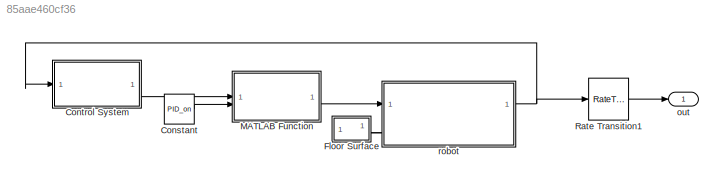
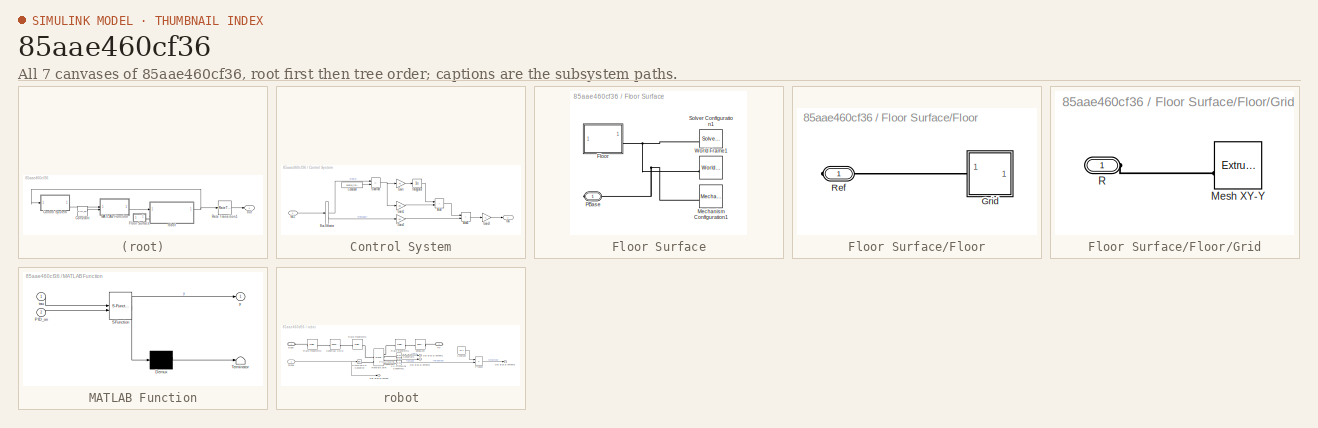
[diagram: thumbnail index - all 7 canvases of the model, root first then tree order]
MODEL slx_85aae460cf36
KIND model
CONFIG AbsTol = auto
CONFIG EnableMultiTasking = off
CONFIG FixedStep = auto
CONFIG MaxStep = auto
CONFIG MinStep = auto
CONFIG RelTol = 1e-3
CONFIG SampleTimeConstraint = Unconstrained
CONFIG SolverName = VariableStepAuto
CONFIG StartTime = 0.0
CONFIG StopTime = 10.0
BLOCK [Constant] Constant
  Value = PID_on
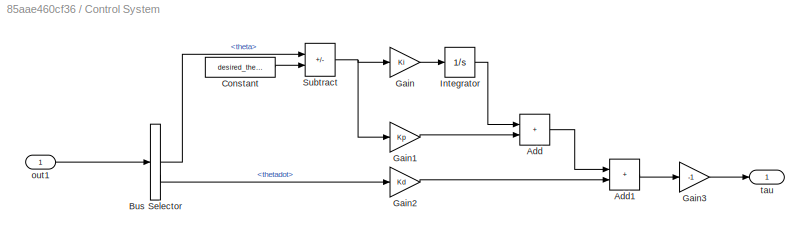
BLOCK [SubSystem] Control System
BLOCK [Sum] Control System/Add
  IconShape = rectangular
BLOCK [Sum] Control System/Add1
  IconShape = rectangular
BLOCK [BusSelector] Control System/Bus Selector
  OutputSignals = theta,thetadot
BLOCK [Constant] Control System/Constant
  Value = desired_theta
BLOCK [Gain] Control System/Gain
  Gain = Ki
BLOCK [Gain] Control System/Gain1
  Gain = Kp
BLOCK [Gain] Control System/Gain2
  Gain = Kd
BLOCK [Gain] Control System/Gain3
  Gain = -1
BLOCK [Integrator] Control System/Integrator
BLOCK [Sum] Control System/Subtract
  IconShape = rectangular
  Inputs = +-
BLOCK [Inport] Control System/out1
BLOCK [Outport] Control System/tau
BLOCK [SubSystem] Floor Surface
BLOCK [SubSystem] Floor Surface/Floor
BLOCK [SubSystem] Floor Surface/Floor/Grid
BLOCK [Reference] Floor Surface/Floor/Grid/Mesh XY-Y  REF=sm_lib/Body Elements/Extruded Solid
  SourceBlock = sm_lib/Body Elements/Extruded Solid
  SourceType = Extruded Solid
BLOCK [PMIOPort] Floor Surface/Floor/Grid/R
  Side = Left
BLOCK [PMIOPort] Floor Surface/Floor/Ref
  NameLocation = top
  Side = Right
BLOCK [Reference] Floor Surface/Mechanism Configuration1  REF=sm_lib/Utilities/Mechanism
Configuration
  NameLocation = top
  SourceBlock = sm_lib/Utilities/Mechanism\nConfiguration
  SourceType = Mechanism\nConfiguration
BLOCK [PMIOPort] Floor Surface/PBase
  Side = Right
BLOCK [Reference] Floor Surface/Solver Configuration1  REF=nesl_utility/Solver
Configuration
  NameLocation = top
  SourceBlock = nesl_utility/Solver\nConfiguration
  SourceType = Solver\nConfiguration
BLOCK [Reference] Floor Surface/World Frame1  REF=sm_lib/Frames and
Transforms/World Frame
  NameLocation = top
  SourceBlock = sm_lib/Frames and\nTransforms/World Frame
  SourceType = World Frame
BLOCK [SubSystem] MATLAB Function
  ErrorFcn = Stateflow.Translate.translate
  PermitHierarchicalResolution = ExplicitOnly
  SFBlockType = MATLAB Function
  TreatAsAtomicUnit = on
BLOCK [Demux] MATLAB Function/ Demux 
  Outputs = 1
BLOCK [S-Function] MATLAB Function/ SFunction 
  EnableBusSupport = on
  FunctionName = sf_sfun
  PortCounts = [2 2]
  SFcnIsStateOwnerBlock = off
  SFunctionDeploymentMode = off
  Tag = Stateflow S-Function 2
BLOCK [Terminator] MATLAB Function/ Terminator 
BLOCK [Inport] MATLAB Function/PID_on
  Port = 2
BLOCK [Inport] MATLAB Function/tau
BLOCK [Outport] MATLAB Function/y
BLOCK [RateTransition] Rate Transition1
  OutPortSampleTime = samplingrate
BLOCK [Outport] out
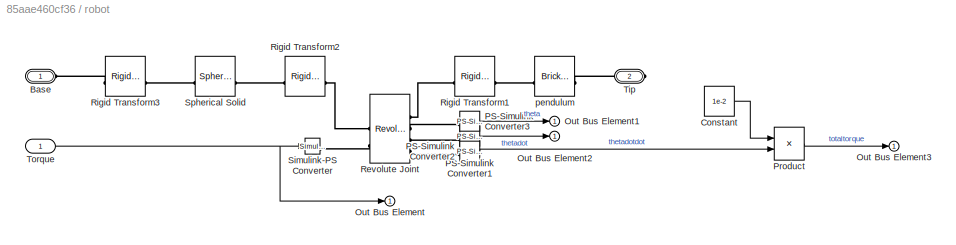
BLOCK [SubSystem] robot
BLOCK [PMIOPort] robot/Base
  Side = Left
BLOCK [Constant] robot/Constant
  Value = 1e-2
BLOCK [Outport] robot/Out Bus Element
BLOCK [Outport] robot/Out Bus Element1
BLOCK [Outport] robot/Out Bus Element2
BLOCK [Outport] robot/Out Bus Element3
BLOCK [Reference] robot/PS-Simulink Converter1  REF=nesl_utility/PS-Simulink
Converter
  SourceBlock = nesl_utility/PS-Simulink\nConverter
  SourceType = PS-Simulink\nConverter
BLOCK [Reference] robot/PS-Simulink Converter2  REF=nesl_utility/PS-Simulink
Converter
  SourceBlock = nesl_utility/PS-Simulink\nConverter
  SourceType = PS-Simulink\nConverter
BLOCK [Reference] robot/PS-Simulink Converter3  REF=nesl_utility/PS-Simulink
Converter
  SourceBlock = nesl_utility/PS-Simulink\nConverter
  SourceType = PS-Simulink\nConverter
BLOCK [Product] robot/Product
BLOCK [Reference] robot/Revolute Joint  REF=sm_lib/Joints/Revolute Joint
  SourceBlock = sm_lib/Joints/Revolute Joint
  SourceType = Revolute Joint
BLOCK [Reference] robot/Rigid Transform1  REF=sm_lib/Frames and
Transforms/Rigid
Transform
  SourceBlock = sm_lib/Frames and\nTransforms/Rigid\nTransform
  SourceType = Rigid\nTransform
BLOCK [Reference] robot/Rigid Transform2  REF=sm_lib/Frames and
Transforms/Rigid
Transform
  SourceBlock = sm_lib/Frames and\nTransforms/Rigid\nTransform
  SourceType = Rigid\nTransform
BLOCK [Reference] robot/Rigid Transform3  REF=sm_lib/Frames and
Transforms/Rigid
Transform
  SourceBlock = sm_lib/Frames and\nTransforms/Rigid\nTransform
  SourceType = Rigid\nTransform
BLOCK [Reference] robot/Simulink-PS Converter  REF=nesl_utility/Simulink-PS
Converter
  SourceBlock = nesl_utility/Simulink-PS\nConverter
  SourceType = Simulink-PS\nConverter
BLOCK [Reference] robot/Spherical Solid  REF=sm_lib/Body Elements/Spherical Solid
  SourceBlock = sm_lib/Body Elements/Spherical Solid
  SourceType = Spherical Solid
BLOCK [PMIOPort] robot/Tip
  Port = 2
  Side = Right
BLOCK [Inport] robot/Torque
BLOCK [Reference] robot/pendulum  REF=sm_lib/Body Elements/Brick Solid
  SourceBlock = sm_lib/Body Elements/Brick Solid
  SourceType = Brick Solid
LINE Constant:1 -> MATLAB Function:2
LINE Control System/Add1:1 -> Control System/Gain3:1
LINE Control System/Add:1 -> Control System/Add1:1
LINE Control System/Bus Selector:1 -> Control System/Subtract:1
LINE Control System/Bus Selector:2 -> Control System/Gain2:1
LINE Control System/Constant:1 -> Control System/Subtract:2
LINE Control System/Gain1:1 -> Control System/Add:2
LINE Control System/Gain2:1 -> Control System/Add1:2
LINE Control System/Gain3:1 -> Control System/tau:1
LINE Control System/Gain:1 -> Control System/Integrator:1
LINE Control System/Integrator:1 -> Control System/Add:1
NET Control System/Subtract:1 -> Control System/Gain1:1, Control System/Gain:1
LINE Control System/out1:1 -> Control System/Bus Selector:1
LINE Control System:1 -> MATLAB Function:1
LINE MATLAB Function:1 -> robot:1
LINE Rate Transition1:1 -> out:1
LINE robot/Constant:1 -> robot/Product:1
LINE robot/PS-Simulink Converter1:1 -> robot/Out Bus Element2:1
LINE robot/PS-Simulink Converter2:1 -> robot/Product:2
LINE robot/PS-Simulink Converter3:1 -> robot/Out Bus Element1:1
LINE robot/Product:1 -> robot/Out Bus Element3:1
NET robot/Torque:1 -> robot/Out Bus Element:1, robot/Simulink-PS Converter:1
NET robot:1 -> Control System:1, Rate Transition1:1
PLINE Floor Surface/Floor/Grid/Mesh XY-Y:RConn1 -- Floor Surface/Floor/Grid/R:RConn1
PLINE Floor Surface/Floor/Grid:LConn1 -- Floor Surface/Floor/Ref:RConn1
PNET net1: Floor Surface/Floor:RConn1 -- Floor Surface/Mechanism Configuration1:RConn1 -- Floor Surface/PBase:RConn1 -- Floor Surface/Solver Configuration1:RConn1 -- Floor Surface/World Frame1:RConn1
PLINE Floor Surface:RConn1 -- robot:LConn1
PLINE robot/Base:RConn1 -- robot/Rigid Transform3:LConn1
PLINE robot/PS-Simulink Converter1:LConn1 -- robot/Revolute Joint:RConn3
PLINE robot/PS-Simulink Converter2:LConn1 -- robot/Revolute Joint:RConn4
PLINE robot/PS-Simulink Converter3:LConn1 -- robot/Revolute Joint:RConn2
PLINE robot/Revolute Joint:LConn1 -- robot/Rigid Transform2:RConn1
PLINE robot/Revolute Joint:LConn2 -- robot/Simulink-PS Converter:RConn1
PLINE robot/Revolute Joint:RConn1 -- robot/Rigid Transform1:LConn1
PLINE robot/Rigid Transform1:RConn1 -- robot/pendulum:LConn1
PLINE robot/Rigid Transform2:LConn1 -- robot/Spherical Solid:RConn1
PLINE robot/Rigid Transform3:RConn1 -- robot/Spherical Solid:LConn1
PLINE robot/Tip:RConn1 -- robot/pendulum:RConn1
note: NET lines group one-source signal fan-out (src -> all destinations, sorted); 1:1 wires keep LINE; PNET lines group multi-terminal physical nets as a canonical sorted terminal list (undirected conserving connections); 2-terminal nets keep the pairwise PLINE form
CHART MATLAB Function states=1 transitions=1
  STATE_LABEL 'eML_blk_kernel()'
  STATE_LABEL 'SCRIPT:\nfunction y = fcn(tau, PID_on)\n    if PID_on\n        y = tau;\n    else \n        y = 0;\n    end \nend\n'
CHART  states=0 transitions=0
